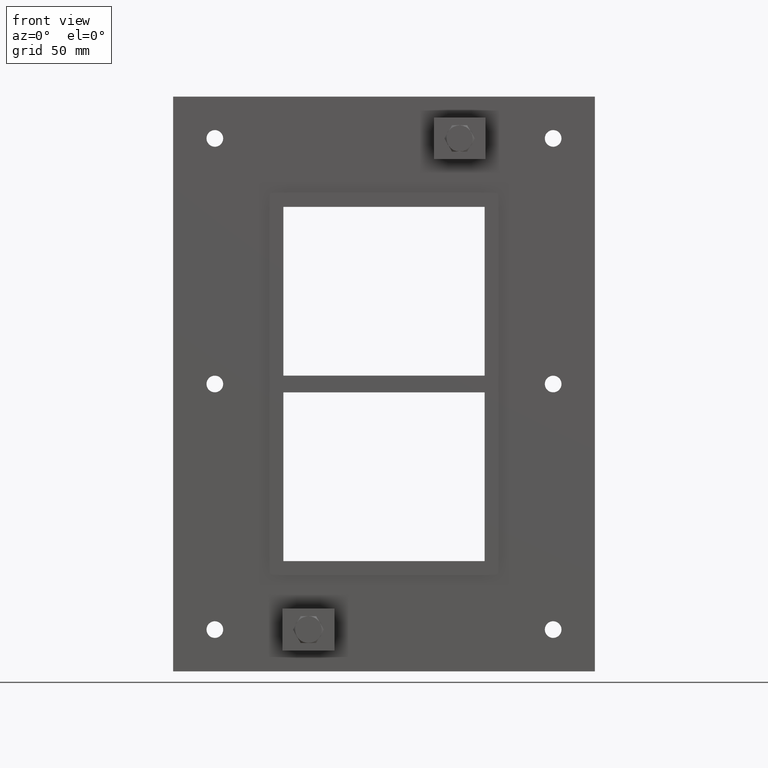
[diagram: clean part render]
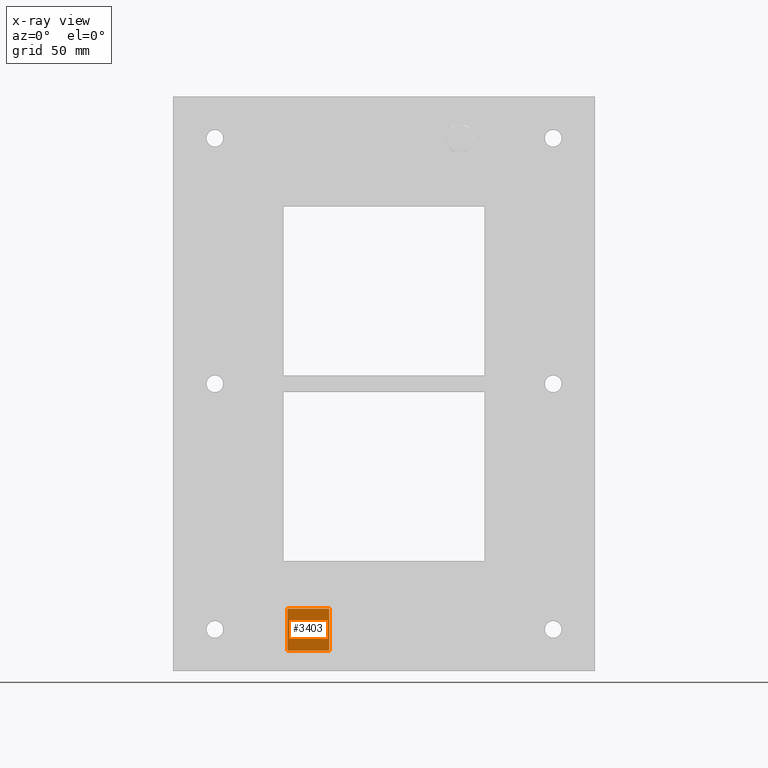
[diagram: x-ray — body ghosted, one internal face saturated and labeled with its STEP entity id]
A machine part, front view, then the same camera in x-ray: the body is ghosted and one INTERNAL B-rep face — a face not visible from any outside direction — is saturated and labeled: STEP entity #3403.
In plain terms, the highlighted planar face has unit normal (0, 1, 0).
Its self-contained STEP definition (entity closure, byte-faithful):
#3258=CARTESIAN_POINT('',(-57.74999999999995,0.0,-159.50000000000003));
#3259=VERTEX_POINT('',#3258);
#3260=CARTESIAN_POINT('',(-57.74999999999995,0.0,-134.5));
#3261=VERTEX_POINT('',#3260);
#3262=CARTESIAN_POINT('',(-57.74999999999995,0.0,-159.50000000000003));
#3263=DIRECTION('',(0.0,0.0,1.0));
#3264=VECTOR('',#3263,25.000000000000028);
#3265=LINE('',#3262,#3264);
#3266=EDGE_CURVE('',#3259,#3261,#3265,.T.);
#3298=CARTESIAN_POINT('',(-32.750000000000021,0.0,-134.5));
#3299=VERTEX_POINT('',#3298);
#3300=CARTESIAN_POINT('',(-57.74999999999995,0.0,-134.5));
#3301=DIRECTION('',(1.0,0.0,0.0));
#3302=VECTOR('',#3301,24.999999999999929);
#3303=LINE('',#3300,#3302);
#3304=EDGE_CURVE('',#3261,#3299,#3303,.T.);
#3329=CARTESIAN_POINT('',(-32.750000000000021,0.0,-159.50000000000003));
#3330=VERTEX_POINT('',#3329);
#3331=CARTESIAN_POINT('',(-32.750000000000021,0.0,-134.5));
#3332=DIRECTION('',(0.0,0.0,-1.0));
#3333=VECTOR('',#3332,25.000000000000028);
#3334=LINE('',#3331,#3333);
#3335=EDGE_CURVE('',#3299,#3330,#3334,.T.);
#3360=CARTESIAN_POINT('',(-32.750000000000021,0.0,-159.50000000000003));
#3361=DIRECTION('',(-1.0,0.0,0.0));
#3362=VECTOR('',#3361,24.999999999999929);
#3363=LINE('',#3360,#3362);
#3364=EDGE_CURVE('',#3330,#3259,#3363,.T.);
#3392=CARTESIAN_POINT('',(-45.249999999999993,0.0,-147.00000000000003));
#3393=DIRECTION('',(0.0,1.0,0.0));
#3394=DIRECTION('',(0.0,0.0,1.0));
#3395=AXIS2_PLACEMENT_3D('',#3392,#3393,#3394);
#3396=PLANE('',#3395);
#3397=ORIENTED_EDGE('',*,*,#3364,.T.);
#3398=ORIENTED_EDGE('',*,*,#3266,.T.);
#3399=ORIENTED_EDGE('',*,*,#3304,.T.);
#3400=ORIENTED_EDGE('',*,*,#3335,.T.);
#3401=EDGE_LOOP('',(#3397,#3398,#3399,#3400));
#3402=FACE_OUTER_BOUND('',#3401,.T.);
#3403=ADVANCED_FACE('',(#3402),#3396,.T.);